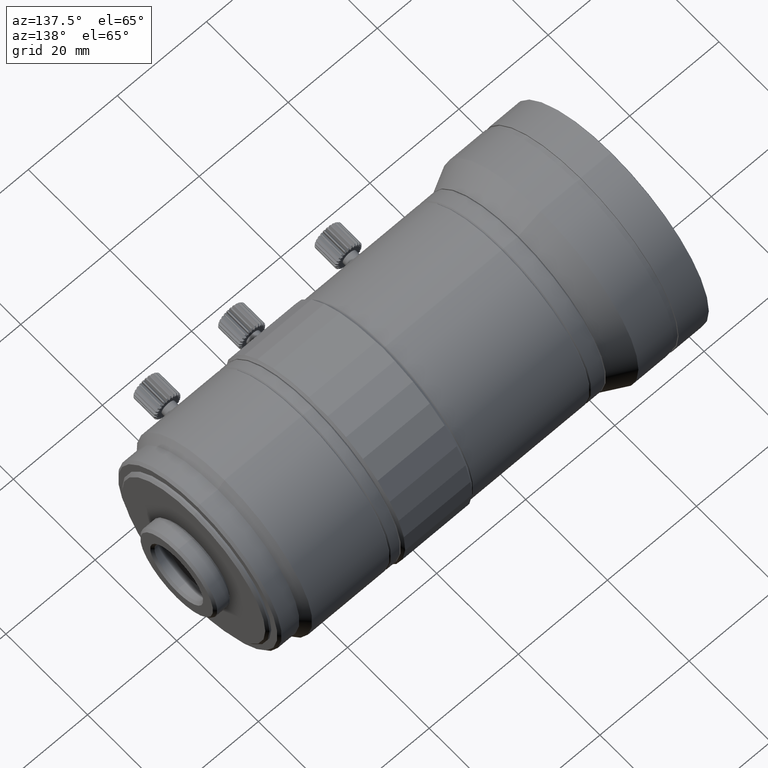
[diagram: clean part render]
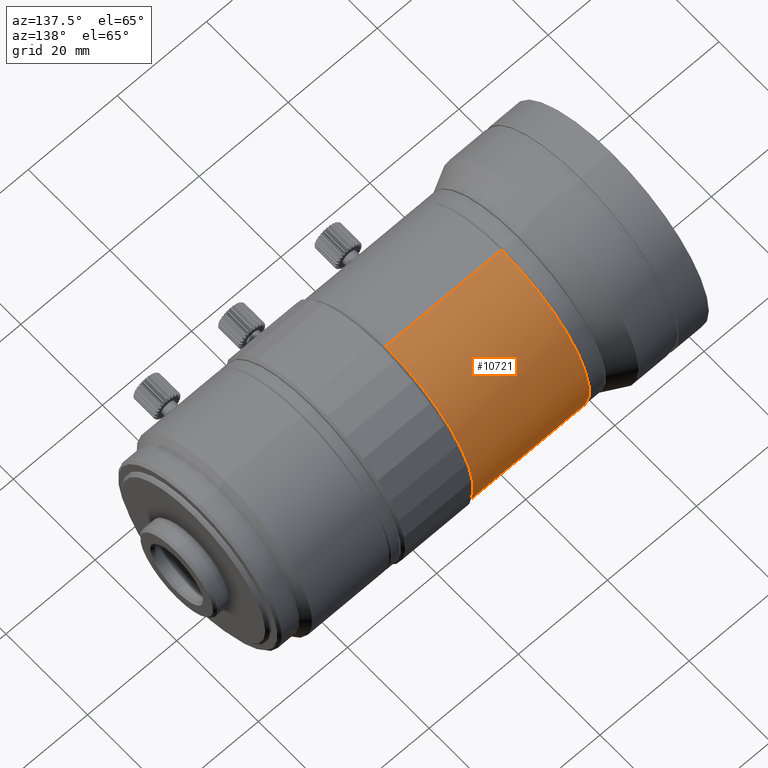
[diagram: same view with one face highlighted and labeled with its STEP entity id]
A machine part, auxiliary view. The second image highlights one B-rep face of the part: STEP entity #10721.
In plain terms, the highlighted cylindrical surface (partial cylindrical patch) has radius 21.5 mm, axis along (1, -0, -0).
Its self-contained STEP definition (entity closure, byte-faithful):
#293 = ORIENTED_EDGE ( 'NONE', *, *, #12919, .F. ) ;
#539 = VERTEX_POINT ( 'NONE', #3050 ) ;
#1125 = DIRECTION ( 'NONE',  ( 1.000000000000000000, -0.000000000000000000, -0.000000000000000000 ) ) ;
#1475 = ORIENTED_EDGE ( 'NONE', *, *, #2822, .F. ) ;
#2513 = FACE_OUTER_BOUND ( 'NONE', #10175, .T. ) ;
#2780 = DIRECTION ( 'NONE',  ( 0.000000000000000000, 0.000000000000000000, -1.000000000000000000 ) ) ;
#2822 = EDGE_CURVE ( 'NONE', #9054, #3793, #3316, .T. ) ;
#3050 = CARTESIAN_POINT ( 'NONE',  ( -72.92999999999999261, 2.632990618166809630E-15, 21.50000000000000000 ) ) ;
#3088 = DIRECTION ( 'NONE',  ( 1.000000000000000000, -0.000000000000000000, -0.000000000000000000 ) ) ;
#3304 = VECTOR ( 'NONE', #8009, 1000.000000000000000 ) ;
#3316 = LINE ( 'NONE', #9241, #3304 ) ;
#3373 = CIRCLE ( 'NONE', #13693, 21.50000000000000355 ) ;
#3397 = ORIENTED_EDGE ( 'NONE', *, *, #8508, .T. ) ;
#3672 = DIRECTION ( 'NONE',  ( 0.000000000000000000, 0.000000000000000000, -1.000000000000000000 ) ) ;
#3793 = VERTEX_POINT ( 'NONE', #8732 ) ;
#3955 = CIRCLE ( 'NONE', #13562, 21.50000000000000000 ) ;
#3982 = LINE ( 'NONE', #10910, #12592 ) ;
#4146 = DIRECTION ( 'NONE',  ( 1.000000000000000000, -0.000000000000000000, -0.000000000000000000 ) ) ;
#5177 = CARTESIAN_POINT ( 'NONE',  ( -72.92999999999999261, 0.000000000000000000, 0.000000000000000000 ) ) ;
#5241 = ORIENTED_EDGE ( 'NONE', *, *, #9290, .T. ) ;
#5967 = VERTEX_POINT ( 'NONE', #12040 ) ;
#8009 = DIRECTION ( 'NONE',  ( 1.000000000000000000, -0.000000000000000000, -0.000000000000000000 ) ) ;
#8508 = EDGE_CURVE ( 'NONE', #9054, #539, #3955, .T. ) ;
#8732 = CARTESIAN_POINT ( 'NONE',  ( -46.82999999999999829, 2.632990618166810024E-15, -21.50000000000000355 ) ) ;
#8877 = DIRECTION ( 'NONE',  ( 0.000000000000000000, 0.000000000000000000, -1.000000000000000000 ) ) ;
#9054 = VERTEX_POINT ( 'NONE', #14807 ) ;
#9241 = CARTESIAN_POINT ( 'NONE',  ( 0.000000000000000000, 0.000000000000000000, -21.50000000000000000 ) ) ;
#9290 = EDGE_CURVE ( 'NONE', #539, #5967, #3982, .T. ) ;
#9596 = CYLINDRICAL_SURFACE ( 'NONE', #11275, 21.50000000000000000 ) ;
#10106 = CARTESIAN_POINT ( 'NONE',  ( -46.82999999999999829, 0.000000000000000000, 0.000000000000000000 ) ) ;
#10175 = EDGE_LOOP ( 'NONE', ( #3397, #5241, #293, #1475 ) ) ;
#10721 = ADVANCED_FACE ( 'NONE', ( #2513 ), #9596, .T. ) ;
#10750 = CARTESIAN_POINT ( 'NONE',  ( 0.000000000000000000, 0.000000000000000000, 0.000000000000000000 ) ) ;
#10910 = CARTESIAN_POINT ( 'NONE',  ( 0.000000000000000000, 2.632990618166809630E-15, 21.50000000000000000 ) ) ;
#11114 = DIRECTION ( 'NONE',  ( 1.000000000000000000, -0.000000000000000000, -0.000000000000000000 ) ) ;
#11275 = AXIS2_PLACEMENT_3D ( 'NONE', #10750, #1125, #3672 ) ;
#12040 = CARTESIAN_POINT ( 'NONE',  ( -46.82999999999999829, 0.000000000000000000, 21.50000000000000355 ) ) ;
#12592 = VECTOR ( 'NONE', #4146, 1000.000000000000000 ) ;
#12919 = EDGE_CURVE ( 'NONE', #3793, #5967, #3373, .T. ) ;
#13562 = AXIS2_PLACEMENT_3D ( 'NONE', #5177, #11114, #8877 ) ;
#13693 = AXIS2_PLACEMENT_3D ( 'NONE', #10106, #3088, #2780 ) ;
#14807 = CARTESIAN_POINT ( 'NONE',  ( -72.92999999999999261, 0.000000000000000000, -21.50000000000000000 ) ) ;